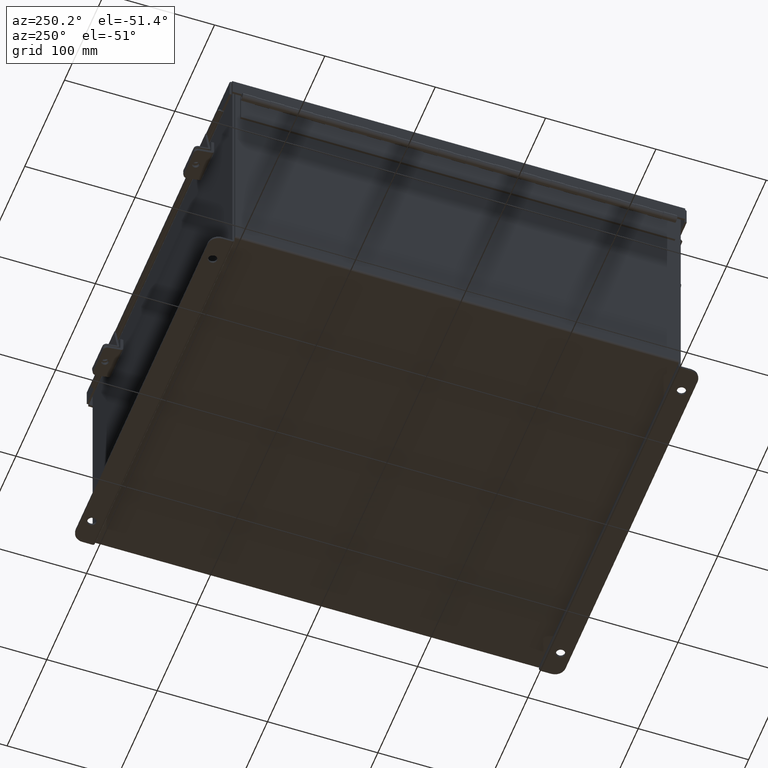
[diagram: clean part render]
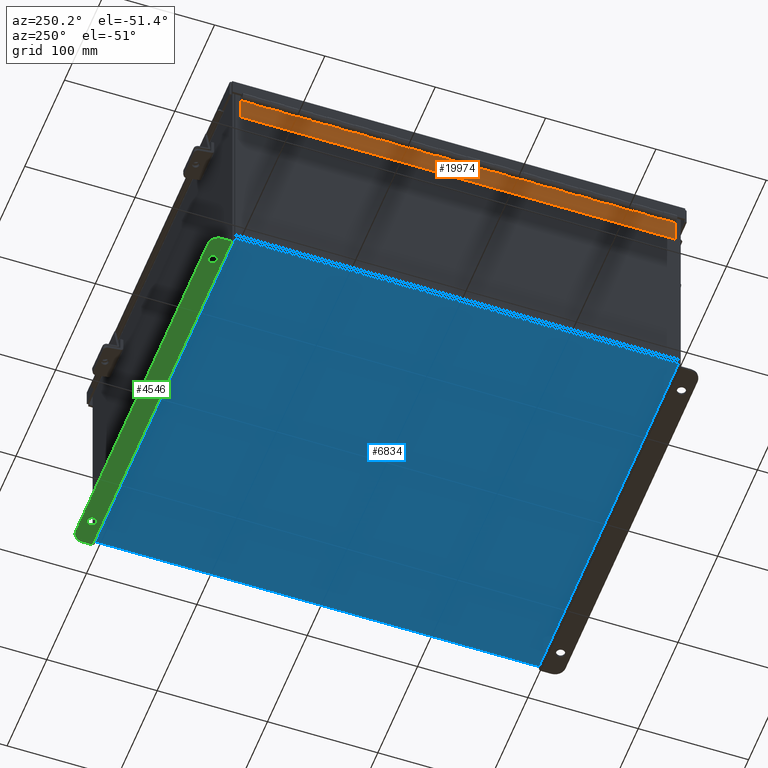
[diagram: same view with three faces highlighted in distinct colors, each labeled with its STEP entity id]
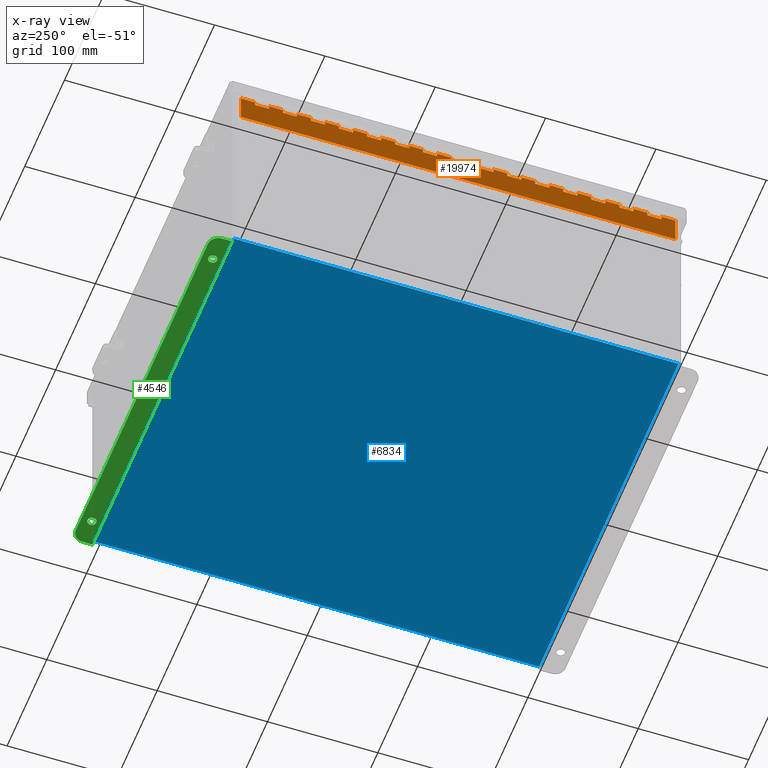
[diagram: x-ray of the same camera — body ghosted, the three highlighted faces saturated]
A machine part, auxiliary view with three faces highlighted in distinct colors.
The next image is the same camera in x-ray (body ghosted, the three faces saturated) — at least one of them is partly hidden behind the body in this view.
Their STEP definitions:

[orange] entity #19974 — the highlighted planar face has unit normal (1, -0, 0).
#17 = VERTEX_POINT ( 'NONE', #8637 ) ;
#27 = CARTESIAN_POINT ( 'NONE',  ( -1.160785228077123600E-013, 8.500000000000001800, 0.0000000000000000000 ) ) ;
#51 = CARTESIAN_POINT ( 'NONE',  ( 0.2730000000000000200, 10.00000000000000000, 0.0000000000000000000 ) ) ;
#129 = CARTESIAN_POINT ( 'NONE',  ( -1.160785228077123600E-013, 13.50000000000000200, 0.0000000000000000000 ) ) ;
#179 = CARTESIAN_POINT ( 'NONE',  ( 0.2730000000000000200, -1.000000000000000000, 0.0000000000000000000 ) ) ;
#214 = VERTEX_POINT ( 'NONE', #1190 ) ;
#268 = LINE ( 'NONE', #4363, #19970 ) ;
#283 = LINE ( 'NONE', #18171, #16335 ) ;
#364 = VECTOR ( 'NONE', #17625, 39.37007874015748100 ) ;
#382 = CARTESIAN_POINT ( 'NONE',  ( 1.136500000000000100, 0.0000000000000000000, 0.0000000000000000000 ) ) ;
#471 = EDGE_CURVE ( 'NONE', #18961, #1712, #4980, .T. ) ;
#520 = LINE ( 'NONE', #2170, #16609 ) ;
#558 = ORIENTED_EDGE ( 'NONE', *, *, #2132, .F. ) ;
#570 = DIRECTION ( 'NONE',  ( -1.000000000000000000, -8.005415366049128100E-015, 0.0000000000000000000 ) ) ;
#573 = CARTESIAN_POINT ( 'NONE',  ( 0.1365000000000000100, 0.0000000000000000000, -1.707404996040164500E-017 ) ) ;
#619 = DIRECTION ( 'NONE',  ( -1.000000000000000000, 0.0000000000000000000, 0.0000000000000000000 ) ) ;
#654 = LINE ( 'NONE', #6915, #7504 ) ;
#664 = DIRECTION ( 'NONE',  ( -1.000000000000000000, 0.0000000000000000000, 0.0000000000000000000 ) ) ;
#687 = CARTESIAN_POINT ( 'NONE',  ( -1.160785228077123600E-013, 5.500000000000000900, 0.0000000000000000000 ) ) ;
#732 = CARTESIAN_POINT ( 'NONE',  ( 0.1365000000000000100, 9.000000000000001800, -1.707404996040164500E-017 ) ) ;
#737 = VECTOR ( 'NONE', #16083, 39.37007874015748100 ) ;
#773 = CARTESIAN_POINT ( 'NONE',  ( 0.1365000000000000100, 0.0000000000000000000, -1.707404996040164500E-017 ) ) ;
#824 = EDGE_CURVE ( 'NONE', #17, #4045, #3184, .T. ) ;
#908 = EDGE_CURVE ( 'NONE', #17, #7647, #6824, .T. ) ;
#1043 = DIRECTION ( 'NONE',  ( -1.000000000000000000, -8.005415366049128100E-015, 0.0000000000000000000 ) ) ;
#1096 = VECTOR ( 'NONE', #570, 39.37007874015748100 ) ;
#1111 = EDGE_CURVE ( 'NONE', #1304, #13584, #18953, .T. ) ;
#1165 = ORIENTED_EDGE ( 'NONE', *, *, #2408, .F. ) ;
#1167 = PLANE ( 'NONE',  #4429 ) ;
#1190 = CARTESIAN_POINT ( 'NONE',  ( 0.2730000000000000200, 5.000000000000000000, 0.0000000000000000000 ) ) ;
#1240 = ORIENTED_EDGE ( 'NONE', *, *, #5786, .T. ) ;
#1281 = ORIENTED_EDGE ( 'NONE', *, *, #11342, .F. ) ;
#1304 = VERTEX_POINT ( 'NONE', #16715 ) ;
#1313 = CARTESIAN_POINT ( 'NONE',  ( 0.2730000000000000200, -10.00000000000000000, 0.0000000000000000000 ) ) ;
#1315 = DIRECTION ( 'NONE',  ( 0.0000000000000000000, 1.000000000000000000, 0.0000000000000000000 ) ) ;
#1334 = VERTEX_POINT ( 'NONE', #17993 ) ;
#1351 = CARTESIAN_POINT ( 'NONE',  ( 0.2730000000000000200, -2.000000000000000000, 0.0000000000000000000 ) ) ;
#1406 = CARTESIAN_POINT ( 'NONE',  ( 0.1365000000000000100, 4.500000000000002700, -1.707404996040164500E-017 ) ) ;
#1408 = VERTEX_POINT ( 'NONE', #7915 ) ;
#1505 = ORIENTED_EDGE ( 'NONE', *, *, #2860, .F. ) ;
#1509 = CARTESIAN_POINT ( 'NONE',  ( -1.160785228077123600E-013, 3.500000000000001300, 0.0000000000000000000 ) ) ;
#1588 = ORIENTED_EDGE ( 'NONE', *, *, #14176, .T. ) ;
#1602 = CARTESIAN_POINT ( 'NONE',  ( 0.1365000000000000100, 11.00000000000000000, -1.707404996040164500E-017 ) ) ;
#1712 = VERTEX_POINT ( 'NONE', #14087 ) ;
#1795 = EDGE_CURVE ( 'NONE', #15847, #14499, #16003, .T. ) ;
#1797 = ORIENTED_EDGE ( 'NONE', *, *, #17727, .F. ) ;
#1801 = VERTEX_POINT ( 'NONE', #13598 ) ;
#1877 = CARTESIAN_POINT ( 'NONE',  ( 0.1365000000000000100, 1.500000000000003100, -1.707404996040164500E-017 ) ) ;
#1933 = EDGE_CURVE ( 'NONE', #18830, #10382, #13589, .T. ) ;
#2005 = VECTOR ( 'NONE', #1315, 39.37007874015748100 ) ;
#2054 = DIRECTION ( 'NONE',  ( -1.000000000000000000, -8.005415366049128100E-015, 0.0000000000000000000 ) ) ;
#2095 = CARTESIAN_POINT ( 'NONE',  ( -1.160785228077123600E-013, 1.500000000000000900, 0.0000000000000000000 ) ) ;
#2132 = EDGE_CURVE ( 'NONE', #9924, #12481, #18433, .T. ) ;
#2170 = CARTESIAN_POINT ( 'NONE',  ( 0.0000000000000000000, 10.00000000000000000, 0.0000000000000000000 ) ) ;
#2182 = CARTESIAN_POINT ( 'NONE',  ( 0.2730000000000000200, 0.5000000000000040000, 0.0000000000000000000 ) ) ;
#2230 = ORIENTED_EDGE ( 'NONE', *, *, #12529, .T. ) ;
#2265 = DIRECTION ( 'NONE',  ( -1.000000000000000000, -8.005415366049128100E-015, 0.0000000000000000000 ) ) ;
#2340 = VECTOR ( 'NONE', #17652, 39.37007874015748100 ) ;
#2351 = DIRECTION ( 'NONE',  ( 0.0000000000000000000, 1.000000000000000000, 0.0000000000000000000 ) ) ;
#2363 = VECTOR ( 'NONE', #15319, 39.37007874015748100 ) ;
#2381 = ORIENTED_EDGE ( 'NONE', *, *, #18647, .F. ) ;
#2408 = EDGE_CURVE ( 'NONE', #13584, #10190, #6762, .T. ) ;
#2464 = EDGE_CURVE ( 'NONE', #15579, #16203, #5815, .T. ) ;
#2465 = VERTEX_POINT ( 'NONE', #16303 ) ;
#2499 = LINE ( 'NONE', #8757, #2005 ) ;
#2536 = VERTEX_POINT ( 'NONE', #13482 ) ;
#2571 = LINE ( 'NONE', #8770, #18120 ) ;
#2573 = LINE ( 'NONE', #12324, #5774 ) ;
#2629 = ORIENTED_EDGE ( 'NONE', *, *, #3483, .T. ) ;
#2679 = VECTOR ( 'NONE', #13195, 39.37007874015748100 ) ;
#2717 = ORIENTED_EDGE ( 'NONE', *, *, #7688, .T. ) ;
#2744 = LINE ( 'NONE', #8742, #6884 ) ;
#2760 = LINE ( 'NONE', #19923, #17325 ) ;
#2764 = DIRECTION ( 'NONE',  ( 0.0000000000000000000, 0.0000000000000000000, -1.000000000000000000 ) ) ;
#2860 = EDGE_CURVE ( 'NONE', #16491, #7668, #15013, .T. ) ;
#2888 = VECTOR ( 'NONE', #7361, 39.37007874015748100 ) ;
#2905 = DIRECTION ( 'NONE',  ( 0.0000000000000000000, 1.000000000000000000, 0.0000000000000000000 ) ) ;
#3008 = CARTESIAN_POINT ( 'NONE',  ( 0.1365000000000000100, 0.0000000000000000000, -1.707404996040164500E-017 ) ) ;
#3081 = LINE ( 'NONE', #17906, #11372 ) ;
#3184 = LINE ( 'NONE', #27, #2679 ) ;
#3203 = DIRECTION ( 'NONE',  ( -1.000000000000000000, 0.0000000000000000000, 0.0000000000000000000 ) ) ;
#3291 = VERTEX_POINT ( 'NONE', #15170 ) ;
#3320 = CARTESIAN_POINT ( 'NONE',  ( -1.160785228077123600E-013, 4.500000000000000900, 0.0000000000000000000 ) ) ;
#3375 = LINE ( 'NONE', #687, #11179 ) ;
#3388 = EDGE_CURVE ( 'NONE', #10036, #10589, #2573, .T. ) ;
#3390 = CARTESIAN_POINT ( 'NONE',  ( 0.2730000000000000200, 0.0000000000000000000, 0.0000000000000000000 ) ) ;
#3476 = CARTESIAN_POINT ( 'NONE',  ( 0.0000000000000000000, 15.00000000000000000, 0.0000000000000000000 ) ) ;
#3483 = EDGE_CURVE ( 'NONE', #17895, #10190, #16682, .T. ) ;
#3502 = CARTESIAN_POINT ( 'NONE',  ( 0.0000000000000000000, 11.00000000000000000, 0.0000000000000000000 ) ) ;
#3518 = DIRECTION ( 'NONE',  ( 0.0000000000000000000, 1.000000000000000000, 0.0000000000000000000 ) ) ;
#3563 = ORIENTED_EDGE ( 'NONE', *, *, #7505, .T. ) ;
#3572 = ORIENTED_EDGE ( 'NONE', *, *, #6550, .T. ) ;
#3574 = ORIENTED_EDGE ( 'NONE', *, *, #18151, .T. ) ;
#3592 = CARTESIAN_POINT ( 'NONE',  ( -1.160785228077123600E-013, 0.5000000000000017800, 0.0000000000000000000 ) ) ;
#3637 = CARTESIAN_POINT ( 'NONE',  ( 0.1365000000000000100, 10.50000000000000200, -1.707404996040164500E-017 ) ) ;
#3660 = ORIENTED_EDGE ( 'NONE', *, *, #13850, .T. ) ;
#3856 = ORIENTED_EDGE ( 'NONE', *, *, #18846, .F. ) ;
#3890 = EDGE_CURVE ( 'NONE', #7668, #12756, #5758, .T. ) ;
#3927 = CARTESIAN_POINT ( 'NONE',  ( 0.1365000000000000100, 8.500000000000003600, -1.707404996040164500E-017 ) ) ;
#4045 = VERTEX_POINT ( 'NONE', #3927 ) ;
#4108 = VECTOR ( 'NONE', #9453, 39.37007874015748100 ) ;
#4185 = VECTOR ( 'NONE', #8571, 39.37007874015748100 ) ;
#4200 = VERTEX_POINT ( 'NONE', #16395 ) ;
#4210 = EDGE_CURVE ( 'NONE', #11090, #1304, #2760, .T. ) ;
#4219 = CARTESIAN_POINT ( 'NONE',  ( 0.2730000000000000200, 13.00000000000000000, 0.0000000000000000000 ) ) ;
#4226 = CARTESIAN_POINT ( 'NONE',  ( 0.2730000000000000200, -9.000000000000000000, 0.0000000000000000000 ) ) ;
#4275 = CARTESIAN_POINT ( 'NONE',  ( 0.1365000000000000100, 14.50000000000000400, -1.707404996040164500E-017 ) ) ;
#4358 = DIRECTION ( 'NONE',  ( 0.0000000000000000000, 1.000000000000000000, 0.0000000000000000000 ) ) ;
#4360 = VECTOR ( 'NONE', #11489, 39.37007874015748100 ) ;
#4363 = CARTESIAN_POINT ( 'NONE',  ( 0.0000000000000000000, 0.0000000000000000000, 0.0000000000000000000 ) ) ;
#4429 = AXIS2_PLACEMENT_3D ( 'NONE', #15146, #2764, #13642 ) ;
#4466 = ORIENTED_EDGE ( 'NONE', *, *, #3890, .F. ) ;
#4479 = LINE ( 'NONE', #129, #8118 ) ;
#4537 = VERTEX_POINT ( 'NONE', #18901 ) ;
#4539 = DIRECTION ( 'NONE',  ( 0.0000000000000000000, 1.000000000000000000, 0.0000000000000000000 ) ) ;
#4655 = VECTOR ( 'NONE', #16024, 39.37007874015748100 ) ;
#4827 = VERTEX_POINT ( 'NONE', #9790 ) ;
#4828 = LINE ( 'NONE', #10217, #8955 ) ;
#4980 = LINE ( 'NONE', #13094, #17344 ) ;
#5002 = ORIENTED_EDGE ( 'NONE', *, *, #7108, .F. ) ;
#5008 = EDGE_CURVE ( 'NONE', #14535, #4200, #2499, .T. ) ;
#5010 = VERTEX_POINT ( 'NONE', #4275 ) ;
#5051 = VERTEX_POINT ( 'NONE', #11899 ) ;
#5219 = EDGE_CURVE ( 'NONE', #17939, #10933, #2744, .T. ) ;
#5233 = ORIENTED_EDGE ( 'NONE', *, *, #2464, .T. ) ;
#5250 = VECTOR ( 'NONE', #16774, 39.37007874015748100 ) ;
#5300 = CARTESIAN_POINT ( 'NONE',  ( 0.2730000000000000200, 6.000000000000000900, 0.0000000000000000000 ) ) ;
#5305 = CARTESIAN_POINT ( 'NONE',  ( -1.160785228077123600E-013, 2.500000000000002200, 0.0000000000000000000 ) ) ;
#5363 = CARTESIAN_POINT ( 'NONE',  ( 0.2730000000000000200, 14.00000000000000200, 0.0000000000000000000 ) ) ;
#5371 = DIRECTION ( 'NONE',  ( -1.000000000000000000, -8.005415366049128100E-015, 0.0000000000000000000 ) ) ;
#5427 = EDGE_CURVE ( 'NONE', #5051, #6963, #13212, .T. ) ;
#5492 = DIRECTION ( 'NONE',  ( 0.0000000000000000000, 1.000000000000000000, 0.0000000000000000000 ) ) ;
#5613 = CARTESIAN_POINT ( 'NONE',  ( 0.1365000000000000100, 15.50000000000000000, -1.707404996040164500E-017 ) ) ;
#5635 = VECTOR ( 'NONE', #13640, 39.37007874015748100 ) ;
#5695 = CARTESIAN_POINT ( 'NONE',  ( 0.1365000000000000100, 12.00000000000000200, -1.707404996040164500E-017 ) ) ;
#5703 = CARTESIAN_POINT ( 'NONE',  ( 0.2730000000000000200, -2.999999999999999600, 0.0000000000000000000 ) ) ;
#5758 = LINE ( 'NONE', #10930, #17603 ) ;
#5765 = DIRECTION ( 'NONE',  ( 0.0000000000000000000, 1.000000000000000000, 0.0000000000000000000 ) ) ;
#5774 = VECTOR ( 'NONE', #17627, 39.37007874015748100 ) ;
#5786 = EDGE_CURVE ( 'NONE', #3291, #12481, #8554, .T. ) ;
#5810 = VERTEX_POINT ( 'NONE', #17977 ) ;
#5815 = LINE ( 'NONE', #2095, #13568 ) ;
#5825 = DIRECTION ( 'NONE',  ( 0.0000000000000000000, 1.000000000000000000, 0.0000000000000000000 ) ) ;
#5891 = ORIENTED_EDGE ( 'NONE', *, *, #5219, .F. ) ;
#5953 = DIRECTION ( 'NONE',  ( 0.0000000000000000000, 1.000000000000000000, 0.0000000000000000000 ) ) ;
#5958 = DIRECTION ( 'NONE',  ( 0.0000000000000000000, 1.000000000000000000, 0.0000000000000000000 ) ) ;
#6014 = EDGE_CURVE ( 'NONE', #9826, #18511, #17050, .T. ) ;
#6035 = CARTESIAN_POINT ( 'NONE',  ( 0.1365000000000000100, 0.0000000000000000000, -1.707404996040164500E-017 ) ) ;
#6040 = ORIENTED_EDGE ( 'NONE', *, *, #9263, .F. ) ;
#6044 = CARTESIAN_POINT ( 'NONE',  ( 0.2730000000000000200, 8.000000000000001800, 0.0000000000000000000 ) ) ;
#6079 = CARTESIAN_POINT ( 'NONE',  ( 0.1365000000000000100, 0.0000000000000000000, -1.707404996040164500E-017 ) ) ;
#6088 = CARTESIAN_POINT ( 'NONE',  ( 0.2730000000000000200, -5.000000000000000000, 0.0000000000000000000 ) ) ;
#6119 = EDGE_CURVE ( 'NONE', #19776, #4827, #11483, .T. ) ;
#6533 = LINE ( 'NONE', #6035, #2363 ) ;
#6540 = VECTOR ( 'NONE', #5958, 39.37007874015748100 ) ;
#6549 = ORIENTED_EDGE ( 'NONE', *, *, #6119, .F. ) ;
#6550 = EDGE_CURVE ( 'NONE', #16491, #5810, #12929, .T. ) ;
#6560 = DIRECTION ( 'NONE',  ( -1.000000000000000000, -8.005415366049128100E-015, 0.0000000000000000000 ) ) ;
#6573 = CARTESIAN_POINT ( 'NONE',  ( 0.2730000000000000200, 15.00000000000000000, 0.0000000000000000000 ) ) ;
#6628 = DIRECTION ( 'NONE',  ( -1.000000000000000000, 0.0000000000000000000, 0.0000000000000000000 ) ) ;
#6651 = LINE ( 'NONE', #3502, #14431 ) ;
#6658 = VERTEX_POINT ( 'NONE', #5695 ) ;
#6693 = ORIENTED_EDGE ( 'NONE', *, *, #1795, .F. ) ;
#6696 = ORIENTED_EDGE ( 'NONE', *, *, #17520, .F. ) ;
#6762 = LINE ( 'NONE', #3008, #14539 ) ;
#6766 = LINE ( 'NONE', #1509, #18455 ) ;
#6824 = LINE ( 'NONE', #19736, #10482 ) ;
#6884 = VECTOR ( 'NONE', #19171, 39.37007874015748100 ) ;
#6915 = CARTESIAN_POINT ( 'NONE',  ( 0.0000000000000000000, 1.000000000000001300, 0.0000000000000000000 ) ) ;
#6963 = VERTEX_POINT ( 'NONE', #16299 ) ;
#7001 = ORIENTED_EDGE ( 'NONE', *, *, #7820, .F. ) ;
#7073 = VECTOR ( 'NONE', #17421, 39.37007874015748100 ) ;
#7108 = EDGE_CURVE ( 'NONE', #18830, #1334, #19654, .T. ) ;
#7138 = VERTEX_POINT ( 'NONE', #19692 ) ;
#7220 = EDGE_CURVE ( 'NONE', #12756, #15282, #10462, .T. ) ;
#7288 = VECTOR ( 'NONE', #11576, 39.37007874015748100 ) ;
#7302 = VERTEX_POINT ( 'NONE', #7896 ) ;
#7361 = DIRECTION ( 'NONE',  ( -1.000000000000000000, 0.0000000000000000000, 0.0000000000000000000 ) ) ;
#7364 = ORIENTED_EDGE ( 'NONE', *, *, #471, .F. ) ;
#7460 = LINE ( 'NONE', #179, #19351 ) ;
#7466 = CARTESIAN_POINT ( 'NONE',  ( -1.160785228077123600E-013, 14.50000000000000200, 0.0000000000000000000 ) ) ;
#7504 = VECTOR ( 'NONE', #16127, 39.37007874015748100 ) ;
#7505 = EDGE_CURVE ( 'NONE', #12603, #1408, #15172, .T. ) ;
#7647 = VERTEX_POINT ( 'NONE', #14948 ) ;
#7655 = CARTESIAN_POINT ( 'NONE',  ( 0.1365000000000000100, 5.000000000000000000, -1.707404996040164500E-017 ) ) ;
#7668 = VERTEX_POINT ( 'NONE', #4219 ) ;
#7688 = EDGE_CURVE ( 'NONE', #15847, #17149, #283, .T. ) ;
#7691 = CARTESIAN_POINT ( 'NONE',  ( 0.1365000000000000100, 0.0000000000000000000, -1.707404996040164500E-017 ) ) ;
#7820 = EDGE_CURVE ( 'NONE', #11500, #10382, #14419, .T. ) ;
#7842 = CARTESIAN_POINT ( 'NONE',  ( 0.2730000000000000200, 14.50000000000000400, 0.0000000000000000000 ) ) ;
#7896 = CARTESIAN_POINT ( 'NONE',  ( 0.2730000000000000200, 5.500000000000002700, 0.0000000000000000000 ) ) ;
#7915 = CARTESIAN_POINT ( 'NONE',  ( 0.1365000000000000100, 11.50000000000000400, -1.707404996040164500E-017 ) ) ;
#7920 = DIRECTION ( 'NONE',  ( -1.000000000000000000, 0.0000000000000000000, 0.0000000000000000000 ) ) ;
#7921 = ORIENTED_EDGE ( 'NONE', *, *, #14867, .F. ) ;
#7945 = VERTEX_POINT ( 'NONE', #382 ) ;
#8014 = VECTOR ( 'NONE', #2905, 39.37007874015748100 ) ;
#8118 = VECTOR ( 'NONE', #14172, 39.37007874015748100 ) ;
#8135 = ORIENTED_EDGE ( 'NONE', *, *, #5427, .T. ) ;
#8153 = ORIENTED_EDGE ( 'NONE', *, *, #14662, .F. ) ;
#8159 = CARTESIAN_POINT ( 'NONE',  ( 0.1365000000000000100, 6.500000000000003600, -1.707404996040164500E-017 ) ) ;
#8185 = ORIENTED_EDGE ( 'NONE', *, *, #17758, .T. ) ;
#8195 = EDGE_CURVE ( 'NONE', #8413, #7945, #268, .T. ) ;
#8235 = LINE ( 'NONE', #17181, #4108 ) ;
#8413 = VERTEX_POINT ( 'NONE', #9509 ) ;
#8416 = CARTESIAN_POINT ( 'NONE',  ( -1.160785228077123600E-013, 11.50000000000000200, 0.0000000000000000000 ) ) ;
#8426 = DIRECTION ( 'NONE',  ( -1.000000000000000000, 0.0000000000000000000, 0.0000000000000000000 ) ) ;
#8441 = DIRECTION ( 'NONE',  ( -1.000000000000000000, 0.0000000000000000000, 0.0000000000000000000 ) ) ;
#8477 = LINE ( 'NONE', #14524, #4360 ) ;
#8505 = CARTESIAN_POINT ( 'NONE',  ( -1.160785228077123600E-013, 6.500000000000000900, 0.0000000000000000000 ) ) ;
#8554 = LINE ( 'NONE', #17767, #737 ) ;
#8571 = DIRECTION ( 'NONE',  ( 0.0000000000000000000, 1.000000000000000000, 0.0000000000000000000 ) ) ;
#8603 = LINE ( 'NONE', #17205, #9573 ) ;
#8629 = ORIENTED_EDGE ( 'NONE', *, *, #15843, .F. ) ;
#8637 = CARTESIAN_POINT ( 'NONE',  ( 0.2730000000000000200, 8.500000000000003600, 0.0000000000000000000 ) ) ;
#8674 = LINE ( 'NONE', #5305, #364 ) ;
#8742 = CARTESIAN_POINT ( 'NONE',  ( 0.1365000000000000100, 0.0000000000000000000, -1.707404996040164500E-017 ) ) ;
#8752 = LINE ( 'NONE', #773, #13875 ) ;
#8757 = CARTESIAN_POINT ( 'NONE',  ( 0.1365000000000000100, 0.0000000000000000000, -1.707404996040164500E-017 ) ) ;
#8770 = CARTESIAN_POINT ( 'NONE',  ( 0.1365000000000000100, 0.0000000000000000000, -1.707404996040164500E-017 ) ) ;
#8866 = EDGE_CURVE ( 'NONE', #15755, #17939, #9760, .T. ) ;
#8924 = CARTESIAN_POINT ( 'NONE',  ( 0.2730000000000000200, -13.00000000000000000, 0.0000000000000000000 ) ) ;
#8955 = VECTOR ( 'NONE', #18052, 39.37007874015748100 ) ;
#9000 = CARTESIAN_POINT ( 'NONE',  ( 0.0000000000000000000, 12.00000000000000200, 0.0000000000000000000 ) ) ;
#9075 = ORIENTED_EDGE ( 'NONE', *, *, #14755, .F. ) ;
#9252 = CARTESIAN_POINT ( 'NONE',  ( -1.160785228077123600E-013, 12.50000000000000000, 0.0000000000000000000 ) ) ;
#9263 = EDGE_CURVE ( 'NONE', #10589, #18961, #11707, .T. ) ;
#9330 = ORIENTED_EDGE ( 'NONE', *, *, #4210, .F. ) ;
#9425 = EDGE_CURVE ( 'NONE', #12603, #7138, #16032, .T. ) ;
#9452 = VECTOR ( 'NONE', #12582, 39.37007874015748100 ) ;
#9453 = DIRECTION ( 'NONE',  ( 0.0000000000000000000, 1.000000000000000000, 0.0000000000000000000 ) ) ;
#9509 = CARTESIAN_POINT ( 'NONE',  ( 0.1364999999999999000, 0.0000000000000000000, 0.0000000000000000000 ) ) ;
#9573 = VECTOR ( 'NONE', #7920, 39.37007874015748100 ) ;
#9655 = FACE_OUTER_BOUND ( 'NONE', #11747, .T. ) ;
#9760 = LINE ( 'NONE', #12094, #5635 ) ;
#9790 = CARTESIAN_POINT ( 'NONE',  ( 0.1365000000000000100, 14.00000000000000200, -1.707404996040164500E-017 ) ) ;
#9796 = LINE ( 'NONE', #8924, #10297 ) ;
#9799 = VECTOR ( 'NONE', #4539, 39.37007874015748100 ) ;
#9826 = VERTEX_POINT ( 'NONE', #12817 ) ;
#9887 = LINE ( 'NONE', #4226, #13049 ) ;
#9924 = VERTEX_POINT ( 'NONE', #16100 ) ;
#9985 = CARTESIAN_POINT ( 'NONE',  ( 0.0000000000000000000, 7.000000000000000900, 0.0000000000000000000 ) ) ;
#10036 = VERTEX_POINT ( 'NONE', #17996 ) ;
#10132 = CARTESIAN_POINT ( 'NONE',  ( 0.2730000000000000200, 7.500000000000003600, 0.0000000000000000000 ) ) ;
#10135 = VERTEX_POINT ( 'NONE', #12130 ) ;
#10190 = VERTEX_POINT ( 'NONE', #1406 ) ;
#10217 = CARTESIAN_POINT ( 'NONE',  ( 0.1365000000000000100, 0.0000000000000000000, -1.707404996040164500E-017 ) ) ;
#10237 = VECTOR ( 'NONE', #15832, 39.37007874015748100 ) ;
#10297 = VECTOR ( 'NONE', #5825, 39.37007874015748100 ) ;
#10333 = ORIENTED_EDGE ( 'NONE', *, *, #908, .F. ) ;
#10368 = EDGE_CURVE ( 'NONE', #11551, #10996, #15523, .T. ) ;
#10382 = VERTEX_POINT ( 'NONE', #8159 ) ;
#10462 = LINE ( 'NONE', #7691, #14583 ) ;
#10482 = VECTOR ( 'NONE', #3518, 39.37007874015748100 ) ;
#10541 = ORIENTED_EDGE ( 'NONE', *, *, #16385, .F. ) ;
#10554 = CARTESIAN_POINT ( 'NONE',  ( 0.1365000000000000100, 0.0000000000000000000, -1.707404996040164500E-017 ) ) ;
#10589 = VERTEX_POINT ( 'NONE', #13662 ) ;
#10664 = LINE ( 'NONE', #16108, #2340 ) ;
#10681 = ORIENTED_EDGE ( 'NONE', *, *, #16713, .F. ) ;
#10692 = LINE ( 'NONE', #16802, #6540 ) ;
#10732 = VECTOR ( 'NONE', #664, 39.37007874015748100 ) ;
#10930 = CARTESIAN_POINT ( 'NONE',  ( 0.0000000000000000000, 13.00000000000000000, 0.0000000000000000000 ) ) ;
#10933 = VERTEX_POINT ( 'NONE', #15888 ) ;
#10996 = VERTEX_POINT ( 'NONE', #11435 ) ;
#11050 = VERTEX_POINT ( 'NONE', #5300 ) ;
#11058 = VECTOR ( 'NONE', #5371, 39.37007874015748100 ) ;
#11090 = VERTEX_POINT ( 'NONE', #19326 ) ;
#11134 = EDGE_CURVE ( 'NONE', #6658, #5810, #8752, .T. ) ;
#11156 = ORIENTED_EDGE ( 'NONE', *, *, #12042, .F. ) ;
#11179 = VECTOR ( 'NONE', #2265, 39.37007874015748100 ) ;
#11184 = LINE ( 'NONE', #9000, #2888 ) ;
#11219 = LINE ( 'NONE', #14282, #10237 ) ;
#11342 = EDGE_CURVE ( 'NONE', #17895, #214, #16248, .T. ) ;
#11372 = VECTOR ( 'NONE', #16284, 39.37007874015748100 ) ;
#11435 = CARTESIAN_POINT ( 'NONE',  ( 0.1365000000000000100, 15.00000000000000000, -1.707404996040164500E-017 ) ) ;
#11449 = VECTOR ( 'NONE', #5953, 39.37007874015748100 ) ;
#11452 = LINE ( 'NONE', #573, #7288 ) ;
#11456 = VECTOR ( 'NONE', #5765, 39.37007874015748100 ) ;
#11483 = LINE ( 'NONE', #16780, #19698 ) ;
#11489 = DIRECTION ( 'NONE',  ( 0.0000000000000000000, 1.000000000000000000, 0.0000000000000000000 ) ) ;
#11500 = VERTEX_POINT ( 'NONE', #17286 ) ;
#11551 = VERTEX_POINT ( 'NONE', #6573 ) ;
#11576 = DIRECTION ( 'NONE',  ( 0.0000000000000000000, 1.000000000000000000, 0.0000000000000000000 ) ) ;
#11610 = ORIENTED_EDGE ( 'NONE', *, *, #9425, .F. ) ;
#11700 = CARTESIAN_POINT ( 'NONE',  ( 0.2730000000000000200, 12.50000000000000400, 0.0000000000000000000 ) ) ;
#11702 = DIRECTION ( 'NONE',  ( 0.0000000000000000000, 1.000000000000000000, 0.0000000000000000000 ) ) ;
#11707 = LINE ( 'NONE', #16169, #10732 ) ;
#11747 = EDGE_LOOP ( 'NONE', ( #1588, #16583, #16282, #2230, #12034, #16390, #14224, #6696, #3660, #8629, #6549, #16181, #15437, #12345, #4466, #1505, #3572, #18411, #15262, #11610, #3563, #11156, #9075, #3856, #1240, #558, #7921, #18825, #8135, #12809, #13737, #10333, #13379, #14501, #17234, #6693, #2717, #18373, #10541, #5002, #13129, #7001, #8153, #16365, #8185, #17256, #10681, #1281, #2629, #1165, #17602, #9330, #3574, #7364, #6040, #12170, #16556, #5891, #15113, #14624, #5233, #17695, #1797, #2381 ) ) ;
#11760 = VECTOR ( 'NONE', #19119, 39.37007874015748100 ) ;
#11779 = DIRECTION ( 'NONE',  ( 0.0000000000000000000, 1.000000000000000000, 0.0000000000000000000 ) ) ;
#11899 = CARTESIAN_POINT ( 'NONE',  ( 0.2730000000000000200, 9.500000000000003600, 0.0000000000000000000 ) ) ;
#11952 = VECTOR ( 'NONE', #619, 39.37007874015748100 ) ;
#12034 = ORIENTED_EDGE ( 'NONE', *, *, #6014, .T. ) ;
#12042 = EDGE_CURVE ( 'NONE', #16088, #1408, #6533, .T. ) ;
#12051 = CARTESIAN_POINT ( 'NONE',  ( 0.1365000000000000100, 7.500000000000003600, -1.707404996040164500E-017 ) ) ;
#12094 = CARTESIAN_POINT ( 'NONE',  ( 0.0000000000000000000, 2.000000000000000400, 0.0000000000000000000 ) ) ;
#12130 = CARTESIAN_POINT ( 'NONE',  ( 0.2730000000000000200, 1.000000000000001300, 0.0000000000000000000 ) ) ;
#12170 = ORIENTED_EDGE ( 'NONE', *, *, #3388, .F. ) ;
#12288 = DIRECTION ( 'NONE',  ( -1.000000000000000000, 0.0000000000000000000, 0.0000000000000000000 ) ) ;
#12324 = CARTESIAN_POINT ( 'NONE',  ( 0.2730000000000000200, -11.99999999999999800, 0.0000000000000000000 ) ) ;
#12345 = ORIENTED_EDGE ( 'NONE', *, *, #7220, .F. ) ;
#12469 = LINE ( 'NONE', #19343, #4185 ) ;
#12481 = VERTEX_POINT ( 'NONE', #3637 ) ;
#12511 = CARTESIAN_POINT ( 'NONE',  ( 0.1365000000000000100, 4.000000000000000900, -1.707404996040164500E-017 ) ) ;
#12529 = EDGE_CURVE ( 'NONE', #7945, #9826, #10664, .T. ) ;
#12582 = DIRECTION ( 'NONE',  ( -1.000000000000000000, -8.005415366049128100E-015, 0.0000000000000000000 ) ) ;
#12603 = VERTEX_POINT ( 'NONE', #13281 ) ;
#12672 = DIRECTION ( 'NONE',  ( 0.0000000000000000000, 1.000000000000000000, 0.0000000000000000000 ) ) ;
#12681 = CARTESIAN_POINT ( 'NONE',  ( 0.2730000000000000200, 1.500000000000003100, 0.0000000000000000000 ) ) ;
#12756 = VERTEX_POINT ( 'NONE', #16726 ) ;
#12809 = ORIENTED_EDGE ( 'NONE', *, *, #17669, .F. ) ;
#12816 = DIRECTION ( 'NONE',  ( -1.000000000000000000, 0.0000000000000000000, 0.0000000000000000000 ) ) ;
#12817 = CARTESIAN_POINT ( 'NONE',  ( 1.136500000000000100, 15.50000000000000000, 0.0000000000000000000 ) ) ;
#12929 = LINE ( 'NONE', #9252, #4655 ) ;
#12947 = VECTOR ( 'NONE', #13270, 39.37007874015748100 ) ;
#12951 = VERTEX_POINT ( 'NONE', #7842 ) ;
#12991 = EDGE_CURVE ( 'NONE', #4537, #19776, #7460, .T. ) ;
#13034 = LINE ( 'NONE', #7466, #5250 ) ;
#13049 = VECTOR ( 'NONE', #15015, 39.37007874015748100 ) ;
#13094 = CARTESIAN_POINT ( 'NONE',  ( 0.1365000000000000100, 0.0000000000000000000, -1.707404996040164500E-017 ) ) ;
#13125 = EDGE_CURVE ( 'NONE', #10036, #10933, #8674, .T. ) ;
#13129 = ORIENTED_EDGE ( 'NONE', *, *, #1933, .T. ) ;
#13195 = DIRECTION ( 'NONE',  ( -1.000000000000000000, -8.005415366049128100E-015, 0.0000000000000000000 ) ) ;
#13211 = CARTESIAN_POINT ( 'NONE',  ( 0.0000000000000000000, 15.50000000000000000, 0.0000000000000000000 ) ) ;
#13212 = LINE ( 'NONE', #16060, #11760 ) ;
#13246 = EDGE_CURVE ( 'NONE', #10996, #18511, #3081, .T. ) ;
#13270 = DIRECTION ( 'NONE',  ( -1.000000000000000000, -0.0000000000000000000, -0.0000000000000000000 ) ) ;
#13281 = CARTESIAN_POINT ( 'NONE',  ( 0.2730000000000000200, 11.50000000000000400, 0.0000000000000000000 ) ) ;
#13294 = EDGE_CURVE ( 'NONE', #8413, #15317, #2571, .T. ) ;
#13327 = EDGE_CURVE ( 'NONE', #7302, #11050, #9887, .T. ) ;
#13379 = ORIENTED_EDGE ( 'NONE', *, *, #824, .T. ) ;
#13482 = CARTESIAN_POINT ( 'NONE',  ( 0.1365000000000000100, 8.000000000000001800, -1.707404996040164500E-017 ) ) ;
#13568 = VECTOR ( 'NONE', #6560, 39.37007874015748100 ) ;
#13584 = VERTEX_POINT ( 'NONE', #12511 ) ;
#13589 = LINE ( 'NONE', #8505, #9452 ) ;
#13598 = CARTESIAN_POINT ( 'NONE',  ( 0.2730000000000000200, 11.00000000000000000, 0.0000000000000000000 ) ) ;
#13640 = DIRECTION ( 'NONE',  ( -1.000000000000000000, 0.0000000000000000000, 0.0000000000000000000 ) ) ;
#13642 = DIRECTION ( 'NONE',  ( -1.000000000000000000, 0.0000000000000000000, -0.0000000000000000000 ) ) ;
#13662 = CARTESIAN_POINT ( 'NONE',  ( 0.2730000000000000200, 3.000000000000001800, 0.0000000000000000000 ) ) ;
#13675 = DIRECTION ( 'NONE',  ( 0.0000000000000000000, 1.000000000000000000, 0.0000000000000000000 ) ) ;
#13679 = CARTESIAN_POINT ( 'NONE',  ( 0.2730000000000000200, -8.000000000000000000, 0.0000000000000000000 ) ) ;
#13737 = ORIENTED_EDGE ( 'NONE', *, *, #18981, .F. ) ;
#13850 = EDGE_CURVE ( 'NONE', #12951, #5010, #13034, .T. ) ;
#13875 = VECTOR ( 'NONE', #11702, 39.37007874015748100 ) ;
#14087 = CARTESIAN_POINT ( 'NONE',  ( 0.1365000000000000100, 3.500000000000003600, -1.707404996040164500E-017 ) ) ;
#14172 = DIRECTION ( 'NONE',  ( -1.000000000000000000, -8.005415366049128100E-015, 0.0000000000000000000 ) ) ;
#14176 = EDGE_CURVE ( 'NONE', #20007, #15317, #15895, .T. ) ;
#14224 = ORIENTED_EDGE ( 'NONE', *, *, #10368, .F. ) ;
#14282 = CARTESIAN_POINT ( 'NONE',  ( 0.0000000000000000000, 5.000000000000000000, 0.0000000000000000000 ) ) ;
#14374 = LINE ( 'NONE', #15886, #7073 ) ;
#14419 = LINE ( 'NONE', #18534, #9799 ) ;
#14431 = VECTOR ( 'NONE', #6628, 39.37007874015748100 ) ;
#14499 = VERTEX_POINT ( 'NONE', #6044 ) ;
#14501 = ORIENTED_EDGE ( 'NONE', *, *, #19163, .F. ) ;
#14523 = VECTOR ( 'NONE', #2351, 39.37007874015748100 ) ;
#14524 = CARTESIAN_POINT ( 'NONE',  ( 0.1365000000000000100, 0.0000000000000000000, -1.707404996040164500E-017 ) ) ;
#14535 = VERTEX_POINT ( 'NONE', #7655 ) ;
#14539 = VECTOR ( 'NONE', #16878, 39.37007874015748100 ) ;
#14583 = VECTOR ( 'NONE', #15436, 39.37007874015748100 ) ;
#14616 = CARTESIAN_POINT ( 'NONE',  ( 0.1365000000000000100, 3.000000000000001800, -1.707404996040164500E-017 ) ) ;
#14624 = ORIENTED_EDGE ( 'NONE', *, *, #15299, .F. ) ;
#14662 = EDGE_CURVE ( 'NONE', #11050, #11500, #8603, .T. ) ;
#14686 = EDGE_CURVE ( 'NONE', #4537, #15282, #4479, .T. ) ;
#14755 = EDGE_CURVE ( 'NONE', #1801, #16088, #6651, .T. ) ;
#14867 = EDGE_CURVE ( 'NONE', #18824, #9924, #520, .T. ) ;
#14920 = CARTESIAN_POINT ( 'NONE',  ( 0.1365000000000000100, 1.000000000000001300, -1.707404996040164500E-017 ) ) ;
#14932 = VERTEX_POINT ( 'NONE', #732 ) ;
#14948 = CARTESIAN_POINT ( 'NONE',  ( 0.2730000000000000200, 9.000000000000001800, 0.0000000000000000000 ) ) ;
#15013 = LINE ( 'NONE', #1351, #14523 ) ;
#15015 = DIRECTION ( 'NONE',  ( 0.0000000000000000000, 1.000000000000000000, 0.0000000000000000000 ) ) ;
#15038 = LINE ( 'NONE', #19286, #18675 ) ;
#15113 = ORIENTED_EDGE ( 'NONE', *, *, #8866, .F. ) ;
#15146 = CARTESIAN_POINT ( 'NONE',  ( 1.136499999999999800, 15.50000000000000000, 0.0000000000000000000 ) ) ;
#15170 = CARTESIAN_POINT ( 'NONE',  ( 0.2730000000000000200, 10.50000000000000200, 0.0000000000000000000 ) ) ;
#15172 = LINE ( 'NONE', #8416, #11058 ) ;
#15262 = ORIENTED_EDGE ( 'NONE', *, *, #18628, .F. ) ;
#15282 = VERTEX_POINT ( 'NONE', #18137 ) ;
#15299 = EDGE_CURVE ( 'NONE', #15579, #15755, #9796, .T. ) ;
#15317 = VERTEX_POINT ( 'NONE', #19765 ) ;
#15319 = DIRECTION ( 'NONE',  ( 0.0000000000000000000, 1.000000000000000000, 0.0000000000000000000 ) ) ;
#15325 = VECTOR ( 'NONE', #12816, 39.37007874015748100 ) ;
#15419 = VECTOR ( 'NONE', #2054, 39.37007874015748100 ) ;
#15436 = DIRECTION ( 'NONE',  ( 0.0000000000000000000, 1.000000000000000000, 0.0000000000000000000 ) ) ;
#15437 = ORIENTED_EDGE ( 'NONE', *, *, #14686, .T. ) ;
#15461 = DIRECTION ( 'NONE',  ( -1.000000000000000000, -8.005415366049128100E-015, 0.0000000000000000000 ) ) ;
#15523 = LINE ( 'NONE', #3476, #19618 ) ;
#15539 = VECTOR ( 'NONE', #16922, 39.37007874015748100 ) ;
#15579 = VERTEX_POINT ( 'NONE', #12681 ) ;
#15586 = LINE ( 'NONE', #9985, #11952 ) ;
#15755 = VERTEX_POINT ( 'NONE', #16216 ) ;
#15765 = VECTOR ( 'NONE', #13675, 39.37007874015748100 ) ;
#15790 = LINE ( 'NONE', #10554, #19902 ) ;
#15811 = DIRECTION ( 'NONE',  ( 0.0000000000000000000, 1.000000000000000000, 0.0000000000000000000 ) ) ;
#15832 = DIRECTION ( 'NONE',  ( -1.000000000000000000, 0.0000000000000000000, 0.0000000000000000000 ) ) ;
#15843 = EDGE_CURVE ( 'NONE', #4827, #5010, #12469, .T. ) ;
#15847 = VERTEX_POINT ( 'NONE', #10132 ) ;
#15886 = CARTESIAN_POINT ( 'NONE',  ( 0.0000000000000000000, 8.000000000000001800, 0.0000000000000000000 ) ) ;
#15888 = CARTESIAN_POINT ( 'NONE',  ( 0.1365000000000000100, 2.500000000000004400, -1.707404996040164500E-017 ) ) ;
#15895 = LINE ( 'NONE', #3592, #15419 ) ;
#16003 = LINE ( 'NONE', #18556, #15539 ) ;
#16024 = DIRECTION ( 'NONE',  ( -1.000000000000000000, -8.005415366049128100E-015, 0.0000000000000000000 ) ) ;
#16032 = LINE ( 'NONE', #5703, #11456 ) ;
#16060 = CARTESIAN_POINT ( 'NONE',  ( -1.160785228077123600E-013, 9.500000000000000000, 0.0000000000000000000 ) ) ;
#16083 = DIRECTION ( 'NONE',  ( -1.000000000000000000, -8.005415366049128100E-015, 0.0000000000000000000 ) ) ;
#16088 = VERTEX_POINT ( 'NONE', #1602 ) ;
#16100 = CARTESIAN_POINT ( 'NONE',  ( 0.1365000000000000100, 10.00000000000000000, -1.707404996040164500E-017 ) ) ;
#16108 = CARTESIAN_POINT ( 'NONE',  ( 1.136500000000000100, 0.0000000000000000000, 0.0000000000000000000 ) ) ;
#16127 = DIRECTION ( 'NONE',  ( -1.000000000000000000, 0.0000000000000000000, 0.0000000000000000000 ) ) ;
#16169 = CARTESIAN_POINT ( 'NONE',  ( 0.0000000000000000000, 3.000000000000001800, 0.0000000000000000000 ) ) ;
#16181 = ORIENTED_EDGE ( 'NONE', *, *, #12991, .F. ) ;
#16203 = VERTEX_POINT ( 'NONE', #1877 ) ;
#16216 = CARTESIAN_POINT ( 'NONE',  ( 0.2730000000000000200, 2.000000000000000400, 0.0000000000000000000 ) ) ;
#16223 = EDGE_CURVE ( 'NONE', #14499, #2536, #14374, .T. ) ;
#16248 = LINE ( 'NONE', #1313, #8014 ) ;
#16282 = ORIENTED_EDGE ( 'NONE', *, *, #8195, .T. ) ;
#16284 = DIRECTION ( 'NONE',  ( 0.0000000000000000000, 1.000000000000000000, 0.0000000000000000000 ) ) ;
#16299 = CARTESIAN_POINT ( 'NONE',  ( 0.1365000000000000100, 9.500000000000003600, -1.707404996040164500E-017 ) ) ;
#16303 = CARTESIAN_POINT ( 'NONE',  ( 0.1365000000000000100, 7.000000000000000900, -1.707404996040164500E-017 ) ) ;
#16335 = VECTOR ( 'NONE', #1043, 39.37007874015748100 ) ;
#16365 = ORIENTED_EDGE ( 'NONE', *, *, #13327, .F. ) ;
#16385 = EDGE_CURVE ( 'NONE', #1334, #2465, #15586, .T. ) ;
#16390 = ORIENTED_EDGE ( 'NONE', *, *, #13246, .F. ) ;
#16395 = CARTESIAN_POINT ( 'NONE',  ( 0.1365000000000000100, 5.500000000000002700, -1.707404996040164500E-017 ) ) ;
#16491 = VERTEX_POINT ( 'NONE', #11700 ) ;
#16553 = CARTESIAN_POINT ( 'NONE',  ( 0.2730000000000000200, 4.500000000000002700, 0.0000000000000000000 ) ) ;
#16556 = ORIENTED_EDGE ( 'NONE', *, *, #13125, .T. ) ;
#16583 = ORIENTED_EDGE ( 'NONE', *, *, #13294, .F. ) ;
#16609 = VECTOR ( 'NONE', #8441, 39.37007874015748100 ) ;
#16619 = CARTESIAN_POINT ( 'NONE',  ( 0.1365000000000000100, 2.000000000000000400, -1.707404996040164500E-017 ) ) ;
#16682 = LINE ( 'NONE', #3320, #1096 ) ;
#16713 = EDGE_CURVE ( 'NONE', #214, #14535, #11219, .T. ) ;
#16715 = CARTESIAN_POINT ( 'NONE',  ( 0.2730000000000000200, 4.000000000000000900, 0.0000000000000000000 ) ) ;
#16726 = CARTESIAN_POINT ( 'NONE',  ( 0.1365000000000000100, 13.00000000000000000, -1.707404996040164500E-017 ) ) ;
#16774 = DIRECTION ( 'NONE',  ( -1.000000000000000000, -8.005415366049128100E-015, 0.0000000000000000000 ) ) ;
#16780 = CARTESIAN_POINT ( 'NONE',  ( 0.0000000000000000000, 14.00000000000000200, 0.0000000000000000000 ) ) ;
#16802 = CARTESIAN_POINT ( 'NONE',  ( 0.2730000000000000200, -14.00000000000000000, 0.0000000000000000000 ) ) ;
#16878 = DIRECTION ( 'NONE',  ( 0.0000000000000000000, 1.000000000000000000, 0.0000000000000000000 ) ) ;
#16895 = EDGE_CURVE ( 'NONE', #18508, #16203, #11452, .T. ) ;
#16922 = DIRECTION ( 'NONE',  ( 0.0000000000000000000, 1.000000000000000000, 0.0000000000000000000 ) ) ;
#17050 = LINE ( 'NONE', #13211, #12947 ) ;
#17121 = CARTESIAN_POINT ( 'NONE',  ( 0.2730000000000000200, 6.500000000000003600, 0.0000000000000000000 ) ) ;
#17149 = VERTEX_POINT ( 'NONE', #12051 ) ;
#17159 = EDGE_CURVE ( 'NONE', #2465, #17149, #15790, .T. ) ;
#17181 = CARTESIAN_POINT ( 'NONE',  ( 0.2730000000000000200, -4.000000000000000000, 0.0000000000000000000 ) ) ;
#17205 = CARTESIAN_POINT ( 'NONE',  ( 0.0000000000000000000, 6.000000000000000900, 0.0000000000000000000 ) ) ;
#17234 = ORIENTED_EDGE ( 'NONE', *, *, #16223, .F. ) ;
#17256 = ORIENTED_EDGE ( 'NONE', *, *, #5008, .F. ) ;
#17286 = CARTESIAN_POINT ( 'NONE',  ( 0.1365000000000000100, 6.000000000000000900, -1.707404996040164500E-017 ) ) ;
#17325 = VECTOR ( 'NONE', #5492, 39.37007874015748100 ) ;
#17344 = VECTOR ( 'NONE', #18395, 39.37007874015748100 ) ;
#17421 = DIRECTION ( 'NONE',  ( -1.000000000000000000, 0.0000000000000000000, 0.0000000000000000000 ) ) ;
#17437 = VECTOR ( 'NONE', #18564, 39.37007874015748100 ) ;
#17520 = EDGE_CURVE ( 'NONE', #12951, #11551, #19634, .T. ) ;
#17602 = ORIENTED_EDGE ( 'NONE', *, *, #1111, .F. ) ;
#17603 = VECTOR ( 'NONE', #12288, 39.37007874015748100 ) ;
#17625 = DIRECTION ( 'NONE',  ( -1.000000000000000000, -8.005415366049128100E-015, 0.0000000000000000000 ) ) ;
#17627 = DIRECTION ( 'NONE',  ( 0.0000000000000000000, 1.000000000000000000, 0.0000000000000000000 ) ) ;
#17652 = DIRECTION ( 'NONE',  ( -8.812412882787946000E-018, 1.000000000000000000, 0.0000000000000000000 ) ) ;
#17669 = EDGE_CURVE ( 'NONE', #14932, #6963, #8477, .T. ) ;
#17695 = ORIENTED_EDGE ( 'NONE', *, *, #16895, .F. ) ;
#17727 = EDGE_CURVE ( 'NONE', #10135, #18508, #654, .T. ) ;
#17758 = EDGE_CURVE ( 'NONE', #7302, #4200, #3375, .T. ) ;
#17767 = CARTESIAN_POINT ( 'NONE',  ( -1.160785228077123600E-013, 10.50000000000000200, 0.0000000000000000000 ) ) ;
#17895 = VERTEX_POINT ( 'NONE', #16553 ) ;
#17906 = CARTESIAN_POINT ( 'NONE',  ( 0.1365000000000000100, 0.0000000000000000000, -1.707404996040164500E-017 ) ) ;
#17931 = LINE ( 'NONE', #6088, #17437 ) ;
#17939 = VERTEX_POINT ( 'NONE', #16619 ) ;
#17977 = CARTESIAN_POINT ( 'NONE',  ( 0.1365000000000000100, 12.50000000000000400, -1.707404996040164500E-017 ) ) ;
#17993 = CARTESIAN_POINT ( 'NONE',  ( 0.2730000000000000200, 7.000000000000000900, 0.0000000000000000000 ) ) ;
#17996 = CARTESIAN_POINT ( 'NONE',  ( 0.2730000000000000200, 2.500000000000004400, 0.0000000000000000000 ) ) ;
#18052 = DIRECTION ( 'NONE',  ( 0.0000000000000000000, 1.000000000000000000, 0.0000000000000000000 ) ) ;
#18120 = VECTOR ( 'NONE', #11779, 39.37007874015748100 ) ;
#18127 = CARTESIAN_POINT ( 'NONE',  ( 0.0000000000000000000, 4.000000000000000900, 0.0000000000000000000 ) ) ;
#18137 = CARTESIAN_POINT ( 'NONE',  ( 0.1365000000000000100, 13.50000000000000400, -1.707404996040164500E-017 ) ) ;
#18151 = EDGE_CURVE ( 'NONE', #11090, #1712, #6766, .T. ) ;
#18171 = CARTESIAN_POINT ( 'NONE',  ( -1.160785228077123600E-013, 7.500000000000001800, 0.0000000000000000000 ) ) ;
#18331 = DIRECTION ( 'NONE',  ( 1.000000000000000000, 0.0000000000000000000, 0.0000000000000000000 ) ) ;
#18373 = ORIENTED_EDGE ( 'NONE', *, *, #17159, .F. ) ;
#18395 = DIRECTION ( 'NONE',  ( 0.0000000000000000000, 1.000000000000000000, 0.0000000000000000000 ) ) ;
#18411 = ORIENTED_EDGE ( 'NONE', *, *, #11134, .F. ) ;
#18433 = LINE ( 'NONE', #6079, #15765 ) ;
#18455 = VECTOR ( 'NONE', #15461, 39.37007874015748100 ) ;
#18508 = VERTEX_POINT ( 'NONE', #14920 ) ;
#18511 = VERTEX_POINT ( 'NONE', #5613 ) ;
#18534 = CARTESIAN_POINT ( 'NONE',  ( 0.1365000000000000100, 0.0000000000000000000, -1.707404996040164500E-017 ) ) ;
#18556 = CARTESIAN_POINT ( 'NONE',  ( 0.2730000000000000200, -7.000000000000000000, 0.0000000000000000000 ) ) ;
#18564 = DIRECTION ( 'NONE',  ( 0.0000000000000000000, 1.000000000000000000, 0.0000000000000000000 ) ) ;
#18628 = EDGE_CURVE ( 'NONE', #7138, #6658, #11184, .T. ) ;
#18647 = EDGE_CURVE ( 'NONE', #20007, #10135, #10692, .T. ) ;
#18675 = VECTOR ( 'NONE', #8426, 39.37007874015748100 ) ;
#18736 = EDGE_CURVE ( 'NONE', #5051, #18824, #17931, .T. ) ;
#18824 = VERTEX_POINT ( 'NONE', #51 ) ;
#18825 = ORIENTED_EDGE ( 'NONE', *, *, #18736, .F. ) ;
#18830 = VERTEX_POINT ( 'NONE', #17121 ) ;
#18846 = EDGE_CURVE ( 'NONE', #3291, #1801, #8235, .T. ) ;
#18901 = CARTESIAN_POINT ( 'NONE',  ( 0.2730000000000000200, 13.50000000000000400, 0.0000000000000000000 ) ) ;
#18945 = DIRECTION ( 'NONE',  ( -1.000000000000000000, 0.0000000000000000000, 0.0000000000000000000 ) ) ;
#18953 = LINE ( 'NONE', #18127, #15325 ) ;
#18961 = VERTEX_POINT ( 'NONE', #14616 ) ;
#18981 = EDGE_CURVE ( 'NONE', #7647, #14932, #15038, .T. ) ;
#19119 = DIRECTION ( 'NONE',  ( -1.000000000000000000, -8.005415366049128100E-015, 0.0000000000000000000 ) ) ;
#19163 = EDGE_CURVE ( 'NONE', #2536, #4045, #4828, .T. ) ;
#19170 = VECTOR ( 'NONE', #15811, 39.37007874015748100 ) ;
#19171 = DIRECTION ( 'NONE',  ( 0.0000000000000000000, 1.000000000000000000, 0.0000000000000000000 ) ) ;
#19286 = CARTESIAN_POINT ( 'NONE',  ( 0.0000000000000000000, 9.000000000000001800, 0.0000000000000000000 ) ) ;
#19326 = CARTESIAN_POINT ( 'NONE',  ( 0.2730000000000000200, 3.500000000000003600, 0.0000000000000000000 ) ) ;
#19343 = CARTESIAN_POINT ( 'NONE',  ( 0.1365000000000000100, 0.0000000000000000000, -1.707404996040164500E-017 ) ) ;
#19351 = VECTOR ( 'NONE', #12672, 39.37007874015748100 ) ;
#19618 = VECTOR ( 'NONE', #18945, 39.37007874015748100 ) ;
#19634 = LINE ( 'NONE', #3390, #19170 ) ;
#19654 = LINE ( 'NONE', #13679, #11449 ) ;
#19692 = CARTESIAN_POINT ( 'NONE',  ( 0.2730000000000000200, 12.00000000000000200, 0.0000000000000000000 ) ) ;
#19698 = VECTOR ( 'NONE', #3203, 39.37007874015748100 ) ;
#19736 = CARTESIAN_POINT ( 'NONE',  ( 0.2730000000000000200, -5.999999999999999100, 0.0000000000000000000 ) ) ;
#19765 = CARTESIAN_POINT ( 'NONE',  ( 0.1365000000000000100, 0.5000000000000040000, -1.707404996040164500E-017 ) ) ;
#19776 = VERTEX_POINT ( 'NONE', #5363 ) ;
#19902 = VECTOR ( 'NONE', #4358, 39.37007874015748100 ) ;
#19923 = CARTESIAN_POINT ( 'NONE',  ( 0.2730000000000000200, -11.00000000000000000, 0.0000000000000000000 ) ) ;
#19970 = VECTOR ( 'NONE', #18331, 39.37007874015748100 ) ;
#19974 = ADVANCED_FACE ( 'NONE', ( #9655 ), #1167, .F. ) ;
#20007 = VERTEX_POINT ( 'NONE', #2182 ) ;

[blue] entity #6834 — the highlighted planar face has unit normal (0, 0, -1).
#1110 = LINE ( 'NONE', #3418, #8930 ) ;
#1879 = EDGE_LOOP ( 'NONE', ( #7187, #15815, #15760, #19762 ) ) ;
#2556 = EDGE_CURVE ( 'NONE', #5850, #4615, #3839, .T. ) ;
#2980 = EDGE_CURVE ( 'NONE', #16958, #13432, #1110, .T. ) ;
#3344 = DIRECTION ( 'NONE',  ( -1.000000000000000000, -0.0000000000000000000, -0.0000000000000000000 ) ) ;
#3418 = CARTESIAN_POINT ( 'NONE',  ( -7.000000000000000000, 7.925300000000000900, -0.07470000000000000300 ) ) ;
#3839 = LINE ( 'NONE', #5403, #15742 ) ;
#4168 = CARTESIAN_POINT ( 'NONE',  ( -6.912299999999999200, -7.925299999999997300, -0.07469999999999994700 ) ) ;
#4615 = VERTEX_POINT ( 'NONE', #9403 ) ;
#4730 = CARTESIAN_POINT ( 'NONE',  ( 0.0000000000000000000, 0.0000000000000000000, -0.07470000000000000300 ) ) ;
#4940 = EDGE_CURVE ( 'NONE', #16958, #4615, #8601, .T. ) ;
#5177 = CARTESIAN_POINT ( 'NONE',  ( 6.912299999999999200, 7.925300000000001800, -0.07469999999999994700 ) ) ;
#5403 = CARTESIAN_POINT ( 'NONE',  ( -7.000000000000000000, -7.925299999999997300, -0.07470000000000000300 ) ) ;
#5850 = VERTEX_POINT ( 'NONE', #4168 ) ;
#5936 = CARTESIAN_POINT ( 'NONE',  ( -6.912299999999999200, 7.925300000000000900, -0.07470000000000000300 ) ) ;
#6278 = PLANE ( 'NONE',  #12827 ) ;
#6834 = ADVANCED_FACE ( 'NONE', ( #16271 ), #6278, .T. ) ;
#7187 = ORIENTED_EDGE ( 'NONE', *, *, #2980, .F. ) ;
#7780 = DIRECTION ( 'NONE',  ( 0.0000000000000000000, 0.0000000000000000000, -1.000000000000000000 ) ) ;
#8601 = LINE ( 'NONE', #5177, #16346 ) ;
#8930 = VECTOR ( 'NONE', #3344, 39.37007874015748100 ) ;
#9403 = CARTESIAN_POINT ( 'NONE',  ( 6.912299999999999200, -7.925299999999997300, -0.07470000000000000300 ) ) ;
#9669 = LINE ( 'NONE', #13156, #17408 ) ;
#12131 = DIRECTION ( 'NONE',  ( 1.000000000000000000, 0.0000000000000000000, 0.0000000000000000000 ) ) ;
#12551 = EDGE_CURVE ( 'NONE', #5850, #13432, #9669, .T. ) ;
#12827 = AXIS2_PLACEMENT_3D ( 'NONE', #4730, #7780, #17133 ) ;
#13156 = CARTESIAN_POINT ( 'NONE',  ( -6.912299999999999200, -7.925299999999998200, -0.07469999999999994700 ) ) ;
#13432 = VERTEX_POINT ( 'NONE', #5936 ) ;
#14700 = DIRECTION ( 'NONE',  ( -0.0000000000000000000, 1.000000000000000000, -0.0000000000000000000 ) ) ;
#14746 = CARTESIAN_POINT ( 'NONE',  ( 6.912299999999999200, 7.925300000000000000, -0.07469999999999994700 ) ) ;
#15159 = DIRECTION ( 'NONE',  ( -0.0000000000000000000, -1.000000000000000000, -0.0000000000000000000 ) ) ;
#15742 = VECTOR ( 'NONE', #12131, 39.37007874015748100 ) ;
#15760 = ORIENTED_EDGE ( 'NONE', *, *, #2556, .F. ) ;
#15815 = ORIENTED_EDGE ( 'NONE', *, *, #4940, .T. ) ;
#16271 = FACE_OUTER_BOUND ( 'NONE', #1879, .T. ) ;
#16346 = VECTOR ( 'NONE', #15159, 39.37007874015748100 ) ;
#16958 = VERTEX_POINT ( 'NONE', #14746 ) ;
#17133 = DIRECTION ( 'NONE',  ( -1.000000000000000000, 0.0000000000000000000, -0.0000000000000000000 ) ) ;
#17408 = VECTOR ( 'NONE', #14700, 39.37007874015748100 ) ;
#19762 = ORIENTED_EDGE ( 'NONE', *, *, #12551, .T. ) ;

[green] entity #4546 — the highlighted planar face has unit normal (0, 0, 1).
#23 = VECTOR ( 'NONE', #914, 39.37007874015748100 ) ;
#74 = EDGE_LOOP ( 'NONE', ( #2184, #6569 ) ) ;
#221 = CIRCLE ( 'NONE', #11794, 0.1560000000000001900 ) ;
#307 = CARTESIAN_POINT ( 'NONE',  ( -5.987800000000000000, 0.5187999999999999300, -4.187000000000002900 ) ) ;
#316 = DIRECTION ( 'NONE',  ( 0.0000000000000000000, 1.000000000000000000, -3.502369222646487000E-015 ) ) ;
#399 = EDGE_CURVE ( 'NONE', #7124, #8466, #10086, .T. ) ;
#434 = CARTESIAN_POINT ( 'NONE',  ( -6.925300000000000900, -1.529834876451987200E-014, -4.187000000000001200 ) ) ;
#545 = EDGE_LOOP ( 'NONE', ( #17005, #16121, #4309, #17654, #18086, #17787 ) ) ;
#766 = DIRECTION ( 'NONE',  ( 0.0000000000000000000, -3.702694488566362300E-015, -1.000000000000000000 ) ) ;
#914 = DIRECTION ( 'NONE',  ( 1.000000000000000000, 3.944735958968223300E-017, -1.460615209412118400E-031 ) ) ;
#984 = CARTESIAN_POINT ( 'NONE',  ( 5.987799999999998200, 0.3627999999999997300, -4.187000000000002100 ) ) ;
#1211 = DIRECTION ( 'NONE',  ( 0.0000000000000000000, -1.000000000000000000, 4.370956789862820400E-015 ) ) ;
#2184 = ORIENTED_EDGE ( 'NONE', *, *, #19797, .F. ) ;
#2441 = EDGE_CURVE ( 'NONE', #8466, #3836, #6283, .T. ) ;
#2481 = EDGE_CURVE ( 'NONE', #11655, #7124, #9921, .T. ) ;
#2551 = CIRCLE ( 'NONE', #10027, 0.1560000000000001900 ) ;
#2560 = DIRECTION ( 'NONE',  ( 0.0000000000000000000, 1.000000000000000000, -3.502369222646487000E-015 ) ) ;
#2832 = CARTESIAN_POINT ( 'NONE',  ( 5.987799999999998200, 0.2067999999999996000, -4.187000000000001200 ) ) ;
#2867 = DIRECTION ( 'NONE',  ( 0.0000000000000000000, -1.000000000000000000, 4.370956789862820400E-015 ) ) ;
#3707 = LINE ( 'NONE', #9999, #23 ) ;
#3711 = CARTESIAN_POINT ( 'NONE',  ( -6.925300000000000900, 0.3627999999999997300, -4.187000000000002100 ) ) ;
#3716 = FACE_OUTER_BOUND ( 'NONE', #545, .T. ) ;
#3836 = VERTEX_POINT ( 'NONE', #14585 ) ;
#3924 = AXIS2_PLACEMENT_3D ( 'NONE', #12433, #12696, #1211 ) ;
#4309 = ORIENTED_EDGE ( 'NONE', *, *, #6767, .T. ) ;
#4321 = CIRCLE ( 'NONE', #7928, 0.1560000000000001900 ) ;
#4365 = VERTEX_POINT ( 'NONE', #11491 ) ;
#4546 = ADVANCED_FACE ( 'NONE', ( #15635, #6883, #3716 ), #4588, .F. ) ;
#4588 = PLANE ( 'NONE',  #6268 ) ;
#4723 = VECTOR ( 'NONE', #12933, 39.37007874015748100 ) ;
#5367 = LINE ( 'NONE', #6163, #9986 ) ;
#5637 = EDGE_CURVE ( 'NONE', #6318, #14323, #3707, .T. ) ;
#6163 = CARTESIAN_POINT ( 'NONE',  ( 6.925299999999998200, -1.529834876451987200E-014, -4.187000000000001200 ) ) ;
#6194 = VERTEX_POINT ( 'NONE', #2832 ) ;
#6268 = AXIS2_PLACEMENT_3D ( 'NONE', #6551, #17195, #7503 ) ;
#6283 = CIRCLE ( 'NONE', #3924, 0.3750000000000000600 ) ;
#6318 = VERTEX_POINT ( 'NONE', #10745 ) ;
#6519 = CIRCLE ( 'NONE', #18045, 0.1560000000000001900 ) ;
#6551 = CARTESIAN_POINT ( 'NONE',  ( 0.0000000000000000000, -1.529834876451987200E-014, -4.187000000000001200 ) ) ;
#6569 = ORIENTED_EDGE ( 'NONE', *, *, #19312, .F. ) ;
#6767 = EDGE_CURVE ( 'NONE', #3836, #14323, #5367, .T. ) ;
#6848 = EDGE_CURVE ( 'NONE', #6194, #11010, #221, .T. ) ;
#6883 = FACE_BOUND ( 'NONE', #12749, .T. ) ;
#7038 = AXIS2_PLACEMENT_3D ( 'NONE', #18489, #7359, #2867 ) ;
#7124 = VERTEX_POINT ( 'NONE', #16794 ) ;
#7359 = DIRECTION ( 'NONE',  ( -0.0000000000000000000, -3.702694488566362300E-015, -1.000000000000000000 ) ) ;
#7425 = EDGE_CURVE ( 'NONE', #6318, #11655, #17555, .T. ) ;
#7503 = DIRECTION ( 'NONE',  ( 0.0000000000000000000, -1.000000000000000000, 3.702694488566362300E-015 ) ) ;
#7544 = DIRECTION ( 'NONE',  ( 0.0000000000000000000, -3.702694488566362300E-015, -1.000000000000000000 ) ) ;
#7605 = CARTESIAN_POINT ( 'NONE',  ( 0.0000000000000000000, 0.7378000000000000100, -4.187000000000003800 ) ) ;
#7873 = ORIENTED_EDGE ( 'NONE', *, *, #13753, .F. ) ;
#7928 = AXIS2_PLACEMENT_3D ( 'NONE', #10114, #766, #11697 ) ;
#8466 = VERTEX_POINT ( 'NONE', #11304 ) ;
#9590 = VECTOR ( 'NONE', #9697, 39.37007874015748100 ) ;
#9666 = DIRECTION ( 'NONE',  ( 0.0000000000000000000, -3.702694488566362300E-015, -1.000000000000000000 ) ) ;
#9697 = DIRECTION ( 'NONE',  ( 1.000000000000000000, 0.0000000000000000000, -0.0000000000000000000 ) ) ;
#9921 = CIRCLE ( 'NONE', #7038, 0.3750000000000000600 ) ;
#9986 = VECTOR ( 'NONE', #17000, 39.37007874015748100 ) ;
#9999 = CARTESIAN_POINT ( 'NONE',  ( 6.925299999999998200, 0.01300000000000010700, -4.187000000000001200 ) ) ;
#10027 = AXIS2_PLACEMENT_3D ( 'NONE', #984, #11910, #2560 ) ;
#10086 = LINE ( 'NONE', #7605, #9590 ) ;
#10114 = CARTESIAN_POINT ( 'NONE',  ( -5.987800000000000000, 0.3627999999999997300, -4.187000000000002100 ) ) ;
#10745 = CARTESIAN_POINT ( 'NONE',  ( -6.925299999999999100, 0.01300000000000010700, -4.187000000000001200 ) ) ;
#11010 = VERTEX_POINT ( 'NONE', #14533 ) ;
#11304 = CARTESIAN_POINT ( 'NONE',  ( 6.550299999999998200, 0.7378000000000000100, -4.187000000000003800 ) ) ;
#11491 = CARTESIAN_POINT ( 'NONE',  ( -5.987800000000000000, 0.2067999999999996000, -4.187000000000001200 ) ) ;
#11655 = VERTEX_POINT ( 'NONE', #3711 ) ;
#11697 = DIRECTION ( 'NONE',  ( 0.0000000000000000000, 1.000000000000000000, -3.502369222646487000E-015 ) ) ;
#11794 = AXIS2_PLACEMENT_3D ( 'NONE', #18963, #9666, #316 ) ;
#11910 = DIRECTION ( 'NONE',  ( 0.0000000000000000000, -3.702694488566362300E-015, -1.000000000000000000 ) ) ;
#12433 = CARTESIAN_POINT ( 'NONE',  ( 6.550299999999998200, 0.3627999999999997300, -4.187000000000002100 ) ) ;
#12696 = DIRECTION ( 'NONE',  ( -0.0000000000000000000, -3.702694488566362300E-015, -1.000000000000000000 ) ) ;
#12749 = EDGE_LOOP ( 'NONE', ( #7873, #14393 ) ) ;
#12933 = DIRECTION ( 'NONE',  ( 0.0000000000000000000, 1.000000000000000000, -3.702694488566362300E-015 ) ) ;
#13753 = EDGE_CURVE ( 'NONE', #11010, #6194, #2551, .T. ) ;
#14323 = VERTEX_POINT ( 'NONE', #14723 ) ;
#14393 = ORIENTED_EDGE ( 'NONE', *, *, #6848, .F. ) ;
#14533 = CARTESIAN_POINT ( 'NONE',  ( 5.987799999999998200, 0.5187999999999999300, -4.187000000000002900 ) ) ;
#14585 = CARTESIAN_POINT ( 'NONE',  ( 6.925299999999998200, 0.3627999999999997300, -4.187000000000002100 ) ) ;
#14723 = CARTESIAN_POINT ( 'NONE',  ( 6.925299999999998200, 0.01300000000000010700, -4.187000000000001200 ) ) ;
#15635 = FACE_BOUND ( 'NONE', #74, .T. ) ;
#16121 = ORIENTED_EDGE ( 'NONE', *, *, #2441, .T. ) ;
#16794 = CARTESIAN_POINT ( 'NONE',  ( -6.550299999999998200, 0.7378000000000000100, -4.187000000000003800 ) ) ;
#16849 = CARTESIAN_POINT ( 'NONE',  ( -5.987800000000000000, 0.3627999999999997300, -4.187000000000002100 ) ) ;
#17000 = DIRECTION ( 'NONE',  ( 0.0000000000000000000, -1.000000000000000000, 3.702694488566362300E-015 ) ) ;
#17005 = ORIENTED_EDGE ( 'NONE', *, *, #399, .T. ) ;
#17195 = DIRECTION ( 'NONE',  ( 0.0000000000000000000, 3.702694488566362300E-015, 1.000000000000000000 ) ) ;
#17555 = LINE ( 'NONE', #434, #4723 ) ;
#17654 = ORIENTED_EDGE ( 'NONE', *, *, #5637, .F. ) ;
#17787 = ORIENTED_EDGE ( 'NONE', *, *, #2481, .T. ) ;
#18045 = AXIS2_PLACEMENT_3D ( 'NONE', #16849, #7544, #18406 ) ;
#18086 = ORIENTED_EDGE ( 'NONE', *, *, #7425, .T. ) ;
#18406 = DIRECTION ( 'NONE',  ( 0.0000000000000000000, 1.000000000000000000, -3.502369222646487000E-015 ) ) ;
#18489 = CARTESIAN_POINT ( 'NONE',  ( -6.550299999999998200, 0.3627999999999997300, -4.187000000000002100 ) ) ;
#18946 = VERTEX_POINT ( 'NONE', #307 ) ;
#18963 = CARTESIAN_POINT ( 'NONE',  ( 5.987799999999998200, 0.3627999999999997300, -4.187000000000002100 ) ) ;
#19312 = EDGE_CURVE ( 'NONE', #4365, #18946, #6519, .T. ) ;
#19797 = EDGE_CURVE ( 'NONE', #18946, #4365, #4321, .T. ) ;